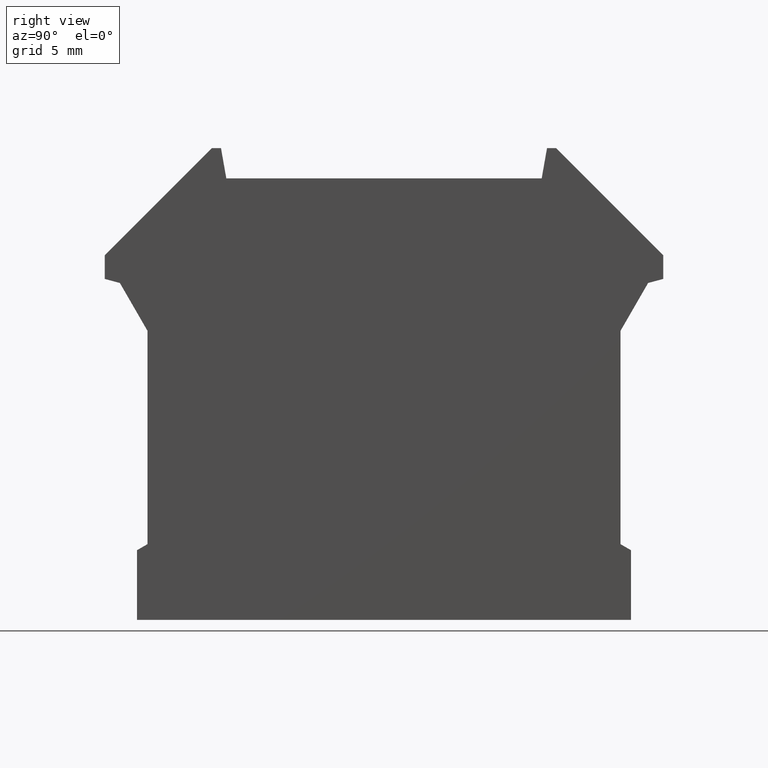
[diagram: clean part render]
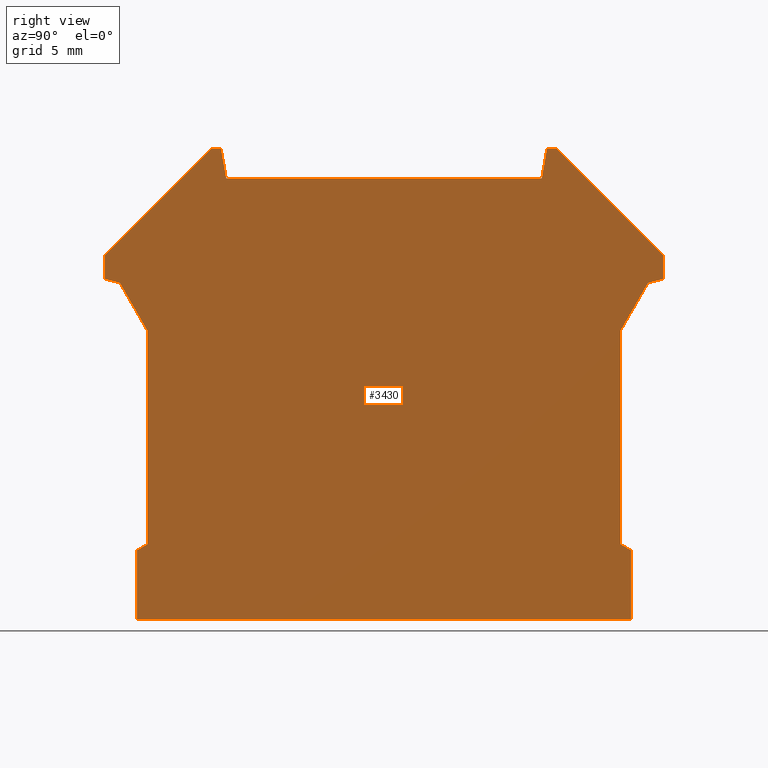
[diagram: same view with one face highlighted and labeled with its STEP entity id]
A machine part, right view. The second image highlights one B-rep face of the part: STEP entity #3430.
In plain terms, the highlighted planar face has unit normal (1, -0, 0).
Its self-contained STEP definition (entity closure, byte-faithful):
#1760=CARTESIAN_POINT('',(0.,0.,-1.5));
#1770=DIRECTION('',(0.,0.,1.));
#1780=DIRECTION('',(1.,0.,0.));
#1790=AXIS2_PLACEMENT_3D('',#1760,#1770,#1780);
#1800=PLANE('',#1790);
#1810=CARTESIAN_POINT('',(0.,264.508100844792,-1.5));
#1820=DIRECTION('',(-1.,0.,0.));
#1830=VECTOR('',#1820,1.);
#1840=LINE('',#1810,#1830);
#1850=CARTESIAN_POINT('',(17.1388454821689,264.508100844792,-1.5));
#1860=VERTEX_POINT('',#1850);
#1870=CARTESIAN_POINT('',(16.4443975377986,264.508100844792,-1.5));
#1880=VERTEX_POINT('',#1870);
#1890=EDGE_CURVE('',#1860,#1880,#1840,.T.);
#1900=ORIENTED_EDGE('',*,*,#1890,.T.);
#1910=CARTESIAN_POINT('',(63.7787602770612,0.,-1.5));
#1920=DIRECTION('',(-0.17364817766693,0.984807753012208,0.));
#1930=VECTOR('',#1920,1.);
#1940=LINE('',#1910,#1930);
#1950=CARTESIAN_POINT('',(17.5443975377984,262.208100844792,-1.5));
#1960=VERTEX_POINT('',#1950);
#1970=EDGE_CURVE('',#1960,#1860,#1940,.T.);
#1980=ORIENTED_EDGE('',*,*,#1970,.T.);
#1990=CARTESIAN_POINT('',(0.,262.208100844792,-1.5));
#2000=DIRECTION('',(-1.,0.,0.));
#2010=VECTOR('',#2000,1.);
#2020=LINE('',#1990,#2010);
#2030=CARTESIAN_POINT('',(41.5443975377984,262.208100844792,-1.5));
#2040=VERTEX_POINT('',#2030);
#2050=EDGE_CURVE('',#2040,#1960,#2020,.T.);
#2060=ORIENTED_EDGE('',*,*,#2050,.T.);
#2070=CARTESIAN_POINT('',(-4.68996520146441,0.,-1.5));
#2080=DIRECTION('',(-0.17364817766693,-0.984807753012208,0.));
#2090=VECTOR('',#2080,1.);
#2100=LINE('',#2070,#2090);
#2110=CARTESIAN_POINT('',(41.9499495934279,264.508100844792,-1.5));
#2120=VERTEX_POINT('',#2110);
#2130=EDGE_CURVE('',#2120,#2040,#2100,.T.);
#2140=ORIENTED_EDGE('',*,*,#2130,.T.);
#2150=CARTESIAN_POINT('',(0.,264.508100844792,-1.5));
#2160=DIRECTION('',(-1.,0.,0.));
#2170=VECTOR('',#2160,1.);
#2180=LINE('',#2150,#2170);
#2190=CARTESIAN_POINT('',(42.6443975377982,264.508100844792,-1.5));
#2200=VERTEX_POINT('',#2190);
#2210=EDGE_CURVE('',#2200,#2120,#2180,.T.);
#2220=ORIENTED_EDGE('',*,*,#2210,.T.);
#2230=CARTESIAN_POINT('',(307.152498382589,0.,-1.5));
#2240=DIRECTION('',(-0.707106781186546,0.707106781186549,0.));
#2250=VECTOR('',#2240,1.);
#2260=LINE('',#2230,#2250);
#2270=CARTESIAN_POINT('',(50.7943975377984,256.358100844792,-1.5));
#2280=VERTEX_POINT('',#2270);
#2290=EDGE_CURVE('',#2280,#2200,#2260,.T.);
#2300=ORIENTED_EDGE('',*,*,#2290,.T.);
#2310=CARTESIAN_POINT('',(50.7943975377984,0.,-1.5));
#2320=DIRECTION('',(0.,1.,0.));
#2330=VECTOR('',#2320,1.);
#2340=LINE('',#2310,#2330);
#2350=CARTESIAN_POINT('',(50.7943975377984,254.553549111982,-1.5));
#2360=VERTEX_POINT('',#2350);
#2370=EDGE_CURVE('',#2360,#2280,#2340,.T.);
#2380=ORIENTED_EDGE('',*,*,#2370,.T.);
#2390=CARTESIAN_POINT('',(0.,240.943231311703,-1.5));
#2400=DIRECTION('',(0.965925826289065,0.258819045102532,0.));
#2410=VECTOR('',#2400,1.);
#2420=LINE('',#2390,#2410);
#2430=CARTESIAN_POINT('',(49.6443975377986,254.245407540687,-1.5));
#2440=VERTEX_POINT('',#2430);
#2450=EDGE_CURVE('',#2440,#2360,#2420,.T.);
#2460=ORIENTED_EDGE('',*,*,#2450,.T.);
#2470=CARTESIAN_POINT('',(-97.1442569460446,0.,-1.5));
#2480=DIRECTION('',(0.500000000000004,0.866025403784437,0.));
#2490=VECTOR('',#2480,1.);
#2500=LINE('',#2470,#2490);
#2510=CARTESIAN_POINT('',(47.5443975377984,250.608100844792,-1.5));
#2520=VERTEX_POINT('',#2510);
#2530=EDGE_CURVE('',#2520,#2440,#2500,.T.);
#2540=ORIENTED_EDGE('',*,*,#2530,.T.);
#2550=CARTESIAN_POINT('',(47.5443975377984,0.,-1.5));
#2560=DIRECTION('',(0.,1.,0.));
#2570=VECTOR('',#2560,1.);
#2580=LINE('',#2550,#2570);
#2590=CARTESIAN_POINT('',(47.5443975377984,234.369981060144,-1.5));
#2600=VERTEX_POINT('',#2590);
#2610=EDGE_CURVE('',#2600,#2520,#2580,.T.);
#2620=ORIENTED_EDGE('',*,*,#2610,.T.);
#2630=CARTESIAN_POINT('',(0.,261.819751777048,-1.5));
#2640=DIRECTION('',(-0.866025403784456,0.499999999999971,0.));
#2650=VECTOR('',#2640,1.);
#2660=LINE('',#2630,#2650);
#2670=CARTESIAN_POINT('',(48.3443975377984,233.908100844792,-1.5));
#2680=VERTEX_POINT('',#2670);
#2690=EDGE_CURVE('',#2680,#2600,#2660,.T.);
#2700=ORIENTED_EDGE('',*,*,#2690,.T.);
#2710=CARTESIAN_POINT('',(48.3443975377984,0.,-1.5));
#2720=DIRECTION('',(0.,1.,0.));
#2730=VECTOR('',#2720,1.);
#2740=LINE('',#2710,#2730);
#2750=CARTESIAN_POINT('',(48.3443975377984,228.608100844792,-1.5));
#2760=VERTEX_POINT('',#2750);
#2770=EDGE_CURVE('',#2760,#2680,#2740,.T.);
#2780=ORIENTED_EDGE('',*,*,#2770,.T.);
#2790=CARTESIAN_POINT('',(0.,228.608100844792,-1.5));
#2800=DIRECTION('',(1.,0.,0.));
#2810=VECTOR('',#2800,1.);
#2820=LINE('',#2790,#2810);
#2830=CARTESIAN_POINT('',(10.7443975377984,228.608100844792,-1.5));
#2840=VERTEX_POINT('',#2830);
#2850=EDGE_CURVE('',#2840,#2760,#2820,.T.);
#2860=ORIENTED_EDGE('',*,*,#2850,.T.);
#2870=CARTESIAN_POINT('',(10.7443975377984,0.,-1.5));
#2880=DIRECTION('',(0.,-1.,0.));
#2890=VECTOR('',#2880,1.);
#2900=LINE('',#2870,#2890);
#2910=CARTESIAN_POINT('',(10.7443975377984,233.908100844792,-1.5));
#2920=VERTEX_POINT('',#2910);
#2930=EDGE_CURVE('',#2920,#2840,#2900,.T.);
#2940=ORIENTED_EDGE('',*,*,#2930,.T.);
#2950=CARTESIAN_POINT('',(0.,227.704820034065,-1.5));
#2960=DIRECTION('',(-0.866025403784465,-0.499999999999955,0.));
#2970=VECTOR('',#2960,1.);
#2980=LINE('',#2950,#2970);
#2990=CARTESIAN_POINT('',(11.5443975377984,234.369981060144,-1.5));
#3000=VERTEX_POINT('',#2990);
#3010=EDGE_CURVE('',#3000,#2920,#2980,.T.);
#3020=ORIENTED_EDGE('',*,*,#3010,.T.);
#3030=CARTESIAN_POINT('',(11.5443975377984,0.,-1.5));
#3040=DIRECTION('',(0.,-1.,0.));
#3050=VECTOR('',#3040,1.);
#3060=LINE('',#3030,#3050);
#3070=CARTESIAN_POINT('',(11.5443975377984,250.608100844792,-1.5));
#3080=VERTEX_POINT('',#3070);
#3090=EDGE_CURVE('',#3080,#3000,#3060,.T.);
#3100=ORIENTED_EDGE('',*,*,#3090,.T.);
#3110=CARTESIAN_POINT('',(156.233052021642,0.,-1.5));
#3120=DIRECTION('',(0.500000000000005,-0.866025403784436,0.));
#3130=VECTOR('',#3120,1.);
#3140=LINE('',#3110,#3130);
#3150=CARTESIAN_POINT('',(9.44439753779835,254.245407540687,-1.5));
#3160=VERTEX_POINT('',#3150);
#3170=EDGE_CURVE('',#3160,#3080,#3140,.T.);
#3180=ORIENTED_EDGE('',*,*,#3170,.T.);
#3190=CARTESIAN_POINT('',(0.,256.776026233938,-1.5));
#3200=DIRECTION('',(0.965925826289065,-0.258819045102532,0.));
#3210=VECTOR('',#3200,1.);
#3220=LINE('',#3190,#3210);
#3230=CARTESIAN_POINT('',(8.2943975377984,254.553549111982,-1.5));
#3240=VERTEX_POINT('',#3230);
#3250=EDGE_CURVE('',#3240,#3160,#3220,.T.);
#3260=ORIENTED_EDGE('',*,*,#3250,.T.);
#3270=CARTESIAN_POINT('',(8.2943975377984,0.,-1.5));
#3280=DIRECTION('',(0.,-1.,0.));
#3290=VECTOR('',#3280,1.);
#3300=LINE('',#3270,#3290);
#3310=CARTESIAN_POINT('',(8.2943975377984,256.358100844792,-1.5));
#3320=VERTEX_POINT('',#3310);
#3330=EDGE_CURVE('',#3320,#3240,#3300,.T.);
#3340=ORIENTED_EDGE('',*,*,#3330,.T.);
#3350=CARTESIAN_POINT('',(-248.063703306992,0.,-1.5));
#3360=DIRECTION('',(-0.707106781186546,-0.707106781186549,0.));
#3370=VECTOR('',#3360,1.);
#3380=LINE('',#3350,#3370);
#3390=EDGE_CURVE('',#1880,#3320,#3380,.T.);
#3400=ORIENTED_EDGE('',*,*,#3390,.T.);
#3410=EDGE_LOOP('',(#3400,#3340,#3260,#3180,#3100,#3020,#2940,#2860,
#2780,#2700,#2620,#2540,#2460,#2380,#2300,#2220,#2140,#2060,#1980,#1900)
);
#3420=FACE_OUTER_BOUND('',#3410,.T.);
#3430=ADVANCED_FACE('',(#3420),#1800,.T.);